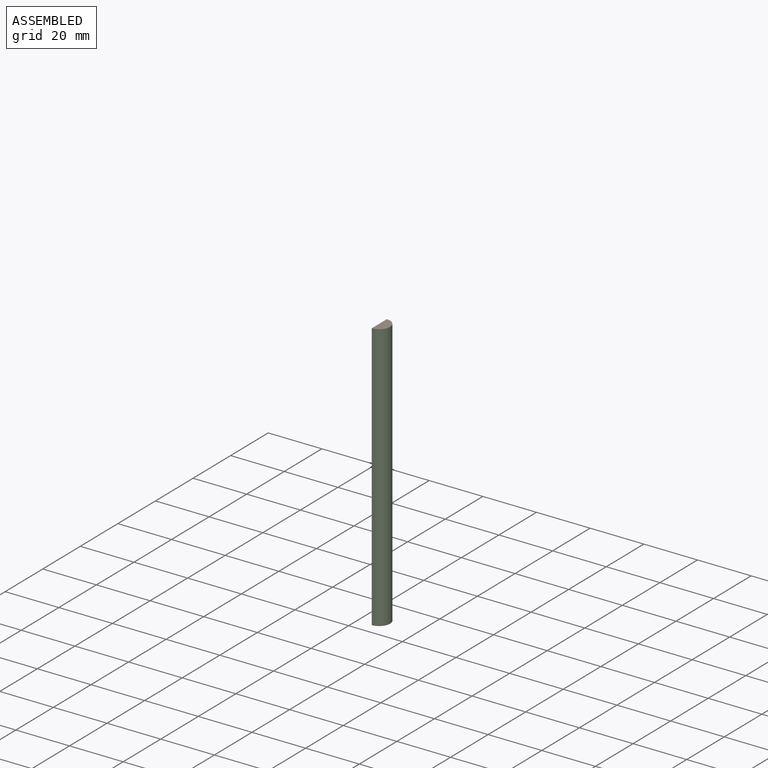
[diagram: assembled view]
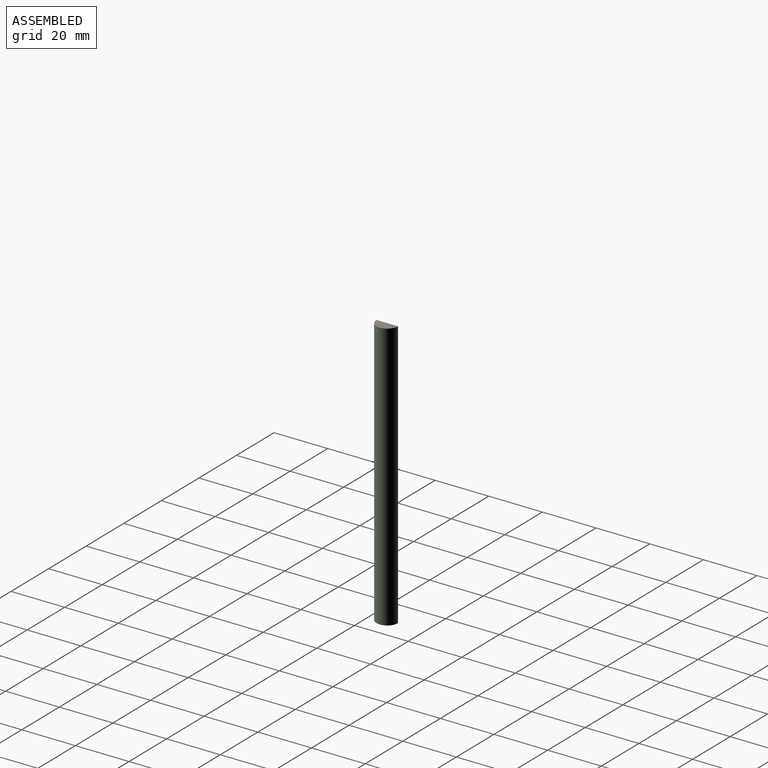
[diagram: assembled view, second angle]
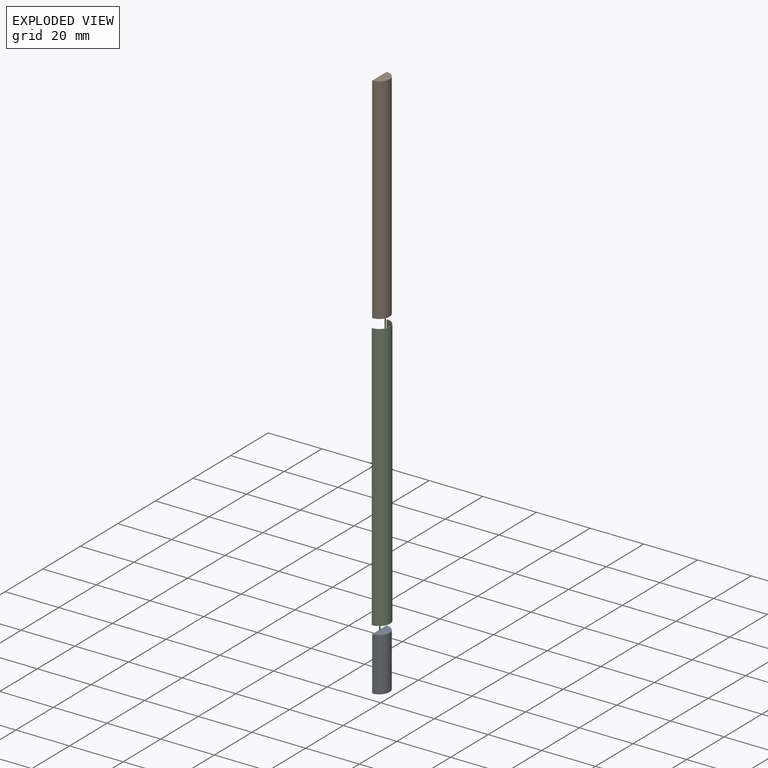
[diagram: exploded view]
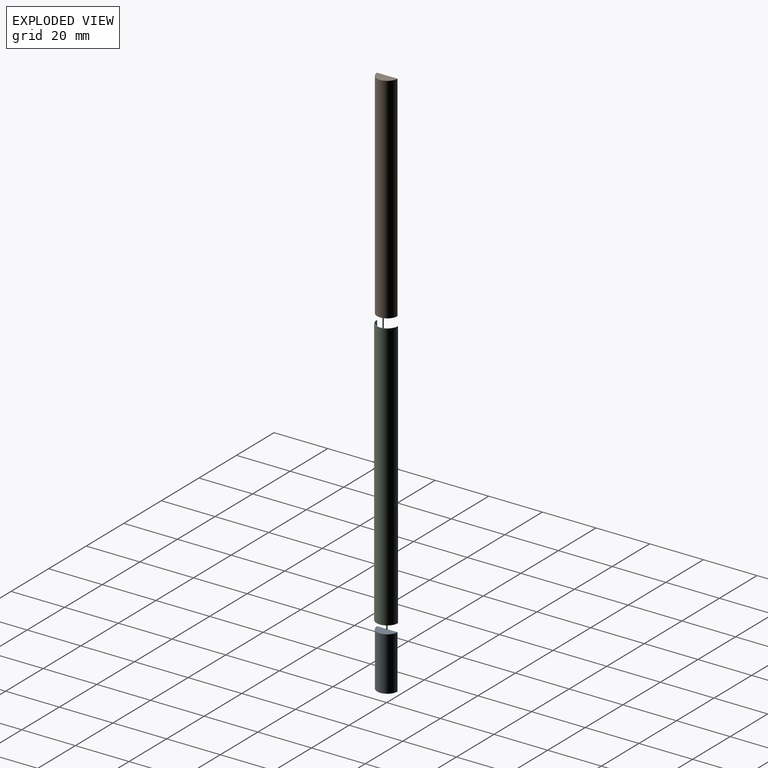
[diagram: exploded view, second angle]
ASSEMBLY  parts=3 mates=2
PART A: 6 faces, bbox 4.3x7.6x20 mm
  f0: cylinder r=3.8mm len=20mm, axis (0,0,-1), area 238.8mm2, adj f1,f2,f3
  f1: plane 20x7.6mm, normal (-1,0,0), area 148.9mm2, adj f0,f2,f3,f5
  f2: plane 7.6x3.8mm, normal (0,0,1), area 22.7mm2, adj f0,f1
  f3: plane 7.6x3.8mm, normal (0,0,-1), area 22.7mm2, adj f0,f1
  f4: plane 0.22x0.22mm, normal (-1,0,0), area 0mm2, adj f5
  f5: torus R=0.11mm, axis (1,0,0), area 4mm2, adj f1,f4
PART B: 4 faces, bbox 3.8x7.6x80 mm
  f0: plane 80x7.6mm, normal (-1,0,0), area 608mm2, adj f1,f2,f3
  f1: cylinder r=3.8mm len=80mm, axis (0,0,-1), area 955mm2, adj f0,f2,f3
  f2: plane 7.6x3.8mm, normal (0,0,1), area 22.7mm2, adj f0,f1
  f3: plane 7.6x3.8mm, normal (0,0,-1), area 22.7mm2, adj f0,f1
PART C: 6 faces, bbox 4x8x100 mm
  f0: cylinder r=3.8mm len=100mm, axis (0,0,-1), area 1193.8mm2, adj f1,f3,f4,f5
  f1: plane 100x0.2mm, normal (-1,0,0), area 20mm2, adj f0,f2,f4,f5
  f2: cylinder r=4mm len=100mm, axis (0,0,-1), area 1256.6mm2, adj f1,f3,f4,f5
  f3: plane 100x0.2mm, normal (-1,0,0), area 20mm2, adj f0,f2,f4,f5
  f4: plane 8x4mm, normal (0,0,1), area 2.5mm2, adj f0,f1,f2,f3
  f5: plane 8x4mm, normal (0,0,-1), area 2.5mm2, adj f0,f1,f2,f3
PLACE A t=(-40.47,-0.09,24.67)mm
PLACE B t=(-42.18,8.9,44.67)mm
PLACE C t=(-40.47,-0.09,24.67)mm
MATE fastened A.f0 <-> C.f0  axis (0,0,-1) through (-40.47,-0.09,24.67)mm
MATE fastened B.f1 <-> C.f0  axis (0,0,1) through (-40.47,-0.09,124.67)mm
